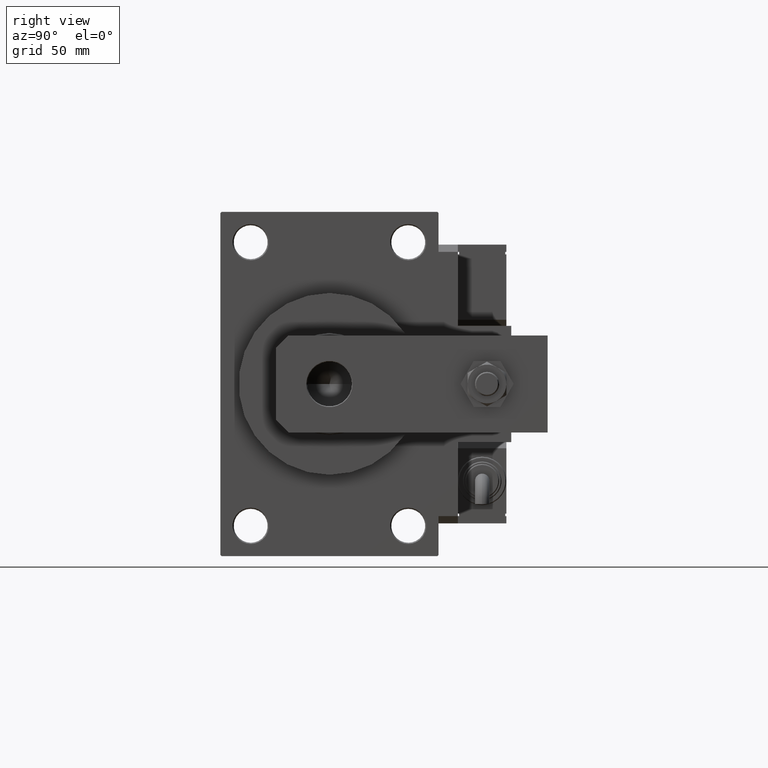
[diagram: clean part render]
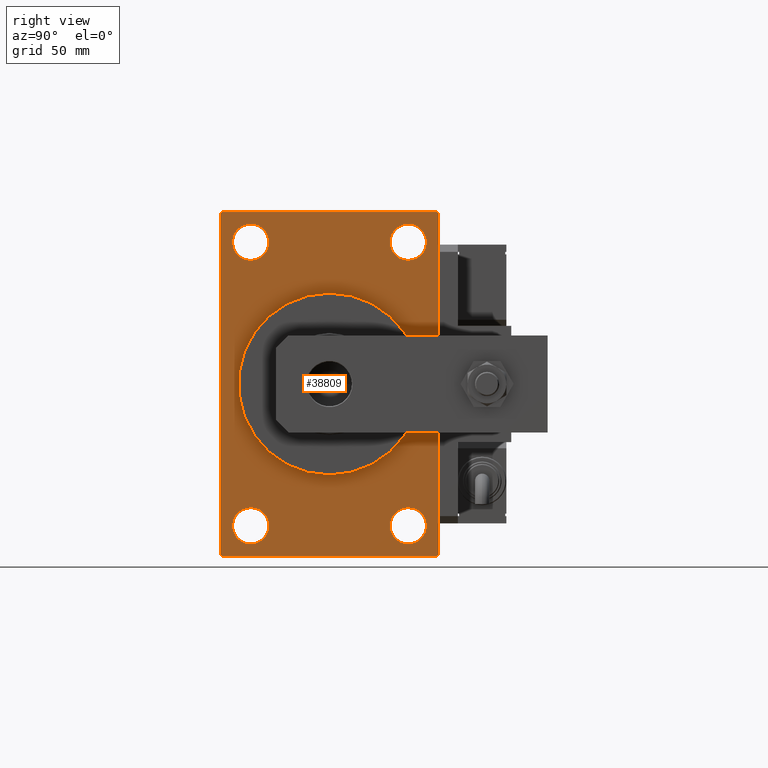
[diagram: same view with one face highlighted and labeled with its STEP entity id]
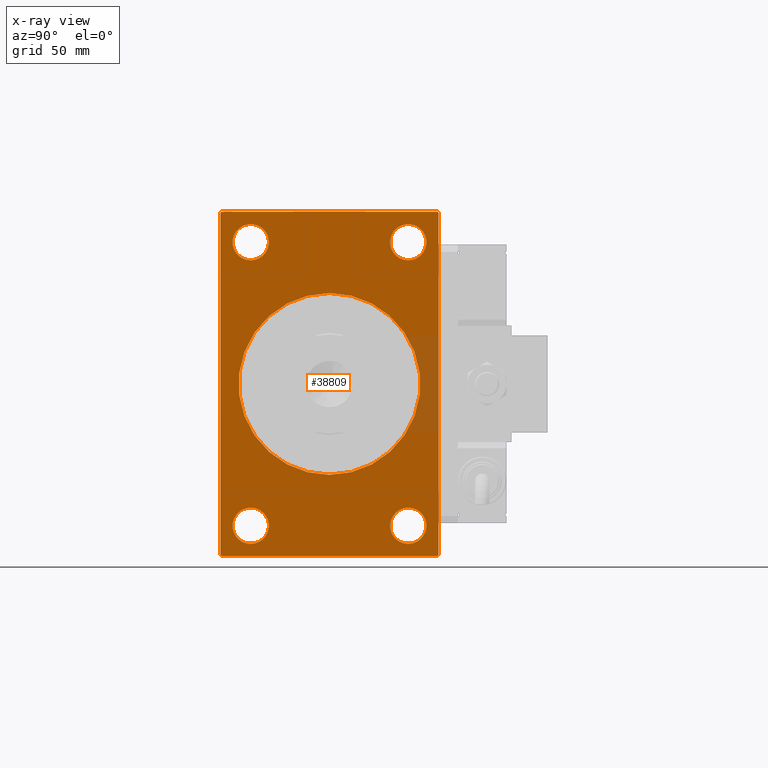
[diagram: x-ray of the same camera — body ghosted, the highlighted face saturated]
A machine part, right view. The second image highlights one B-rep face of the part: STEP entity #38809.
The next image is the same camera in x-ray: the body ghosted, the highlighted face saturated — about 5% of this face is hidden behind the body in this view.
In plain terms, the highlighted planar face has unit normal (-1, 0, 0).
Its self-contained STEP definition (entity closure, byte-faithful):
#549 = VERTEX_POINT ( 'NONE', #50748 ) ;
#657 = LINE ( 'NONE', #30128, #49444 ) ;
#1058 = VECTOR ( 'NONE', #35398, 1000.000000000000114 ) ;
#1947 = EDGE_CURVE ( 'NONE', #48466, #549, #41015, .T. ) ;
#2531 = EDGE_CURVE ( 'NONE', #53239, #50229, #44042, .T. ) ;
#3951 = DIRECTION ( 'NONE',  ( 0.000000000000000000, 0.000000000000000000, 1.000000000000000000 ) ) ;
#4068 = CIRCLE ( 'NONE', #7632, 37.50000000000000711 ) ;
#4560 = CARTESIAN_POINT ( 'NONE',  ( 140.0000000000000000, -32.50000000000001421, 58.50000000000001421 ) ) ;
#4664 = ORIENTED_EDGE ( 'NONE', *, *, #1947, .T. ) ;
#5159 = DIRECTION ( 'NONE',  ( 0.000000000000000000, 0.000000000000000000, -1.000000000000000000 ) ) ;
#5242 = CARTESIAN_POINT ( 'NONE',  ( 140.0000000000000000, 44.49999999999997158, -71.00000000000000000 ) ) ;
#5830 = PLANE ( 'NONE',  #46685 ) ;
#6240 = CARTESIAN_POINT ( 'NONE',  ( 140.0000000000000000, 32.49999999999998579, -66.00000000000000000 ) ) ;
#6892 = DIRECTION ( 'NONE',  ( 1.000000000000000000, 0.000000000000000000, 0.000000000000000000 ) ) ;
#7632 = AXIS2_PLACEMENT_3D ( 'NONE', #18107, #39804, #10599 ) ;
#7678 = EDGE_CURVE ( 'NONE', #35658, #16985, #22828, .T. ) ;
#7710 = CARTESIAN_POINT ( 'NONE',  ( 140.0000000000000000, -44.50000000000000000, -71.00000000000000000 ) ) ;
#8286 = DIRECTION ( 'NONE',  ( -1.000000000000000000, -0.000000000000000000, -0.000000000000000000 ) ) ;
#8716 = EDGE_LOOP ( 'NONE', ( #16716, #11887 ) ) ;
#8816 = CARTESIAN_POINT ( 'NONE',  ( 140.0000000000000000, -45.00000000000000000, 70.49999999999997158 ) ) ;
#8907 = ORIENTED_EDGE ( 'NONE', *, *, #54335, .T. ) ;
#8978 = VERTEX_POINT ( 'NONE', #13273 ) ;
#9212 = ORIENTED_EDGE ( 'NONE', *, *, #33801, .T. ) ;
#9885 = LINE ( 'NONE', #26834, #54566 ) ;
#10149 = ORIENTED_EDGE ( 'NONE', *, *, #24434, .T. ) ;
#10599 = DIRECTION ( 'NONE',  ( 0.000000000000000000, 0.000000000000000000, -1.000000000000000000 ) ) ;
#10976 = CARTESIAN_POINT ( 'NONE',  ( 140.0000000000000000, 45.00000000000000000, -70.49999999999997158 ) ) ;
#11370 = EDGE_CURVE ( 'NONE', #50229, #53554, #9885, .T. ) ;
#11471 = ORIENTED_EDGE ( 'NONE', *, *, #16325, .T. ) ;
#11723 = CARTESIAN_POINT ( 'NONE',  ( 140.0000000000000000, -32.50000000000001421, -58.49999999999998579 ) ) ;
#11887 = ORIENTED_EDGE ( 'NONE', *, *, #15626, .T. ) ;
#12120 = CIRCLE ( 'NONE', #15659, 7.500000000000034639 ) ;
#13273 = CARTESIAN_POINT ( 'NONE',  ( 140.0000000000000000, 32.49999999999998579, 66.00000000000002842 ) ) ;
#13892 = EDGE_CURVE ( 'NONE', #53943, #14305, #4068, .T. ) ;
#13893 = FACE_OUTER_BOUND ( 'NONE', #50429, .T. ) ;
#14305 = VERTEX_POINT ( 'NONE', #46757 ) ;
#14404 = CARTESIAN_POINT ( 'NONE',  ( 140.0000000000000000, -32.50000000000001421, -66.00000000000000000 ) ) ;
#14603 = ORIENTED_EDGE ( 'NONE', *, *, #2531, .T. ) ;
#14715 = ORIENTED_EDGE ( 'NONE', *, *, #22541, .T. ) ;
#15582 = EDGE_LOOP ( 'NONE', ( #8907, #16343 ) ) ;
#15626 = EDGE_CURVE ( 'NONE', #21656, #42736, #12120, .T. ) ;
#15659 = AXIS2_PLACEMENT_3D ( 'NONE', #42028, #16427, #21159 ) ;
#16116 = EDGE_CURVE ( 'NONE', #53239, #29919, #657, .T. ) ;
#16124 = FACE_BOUND ( 'NONE', #8716, .T. ) ;
#16325 = EDGE_CURVE ( 'NONE', #45458, #8978, #24614, .T. ) ;
#16343 = ORIENTED_EDGE ( 'NONE', *, *, #22750, .T. ) ;
#16427 = DIRECTION ( 'NONE',  ( -1.000000000000000000, -0.000000000000000000, -0.000000000000000000 ) ) ;
#16466 = CARTESIAN_POINT ( 'NONE',  ( 140.0000000000000000, -32.50000000000001421, 58.50000000000001421 ) ) ;
#16490 = CARTESIAN_POINT ( 'NONE',  ( 140.0000000000000000, 44.50000000000002842, 71.00000000000000000 ) ) ;
#16716 = ORIENTED_EDGE ( 'NONE', *, *, #17823, .T. ) ;
#16985 = VERTEX_POINT ( 'NONE', #7710 ) ;
#17823 = EDGE_CURVE ( 'NONE', #42736, #21656, #31763, .T. ) ;
#18107 = CARTESIAN_POINT ( 'NONE',  ( 140.0000000000000000, 0.000000000000000000, 0.000000000000000000 ) ) ;
#18241 = DIRECTION ( 'NONE',  ( -0.000000000000000000, -0.7071067811865474617, -0.7071067811865474617 ) ) ;
#18341 = FACE_BOUND ( 'NONE', #51227, .T. ) ;
#18498 = DIRECTION ( 'NONE',  ( 0.000000000000000000, -1.000000000000000000, 0.000000000000000000 ) ) ;
#19020 = VECTOR ( 'NONE', #40618, 1000.000000000000000 ) ;
#19350 = CARTESIAN_POINT ( 'NONE',  ( 140.0000000000000000, 45.00000000000000000, -70.49999999999997158 ) ) ;
#19533 = CARTESIAN_POINT ( 'NONE',  ( 140.0000000000000000, -32.50000000000001421, 66.00000000000004263 ) ) ;
#19785 = DIRECTION ( 'NONE',  ( -1.000000000000000000, -0.000000000000000000, -0.000000000000000000 ) ) ;
#20197 = AXIS2_PLACEMENT_3D ( 'NONE', #51494, #43149, #3951 ) ;
#20272 = DIRECTION ( 'NONE',  ( 0.000000000000000000, 0.7071067811865474617, -0.7071067811865474617 ) ) ;
#20311 = FACE_BOUND ( 'NONE', #53738, .T. ) ;
#20499 = CIRCLE ( 'NONE', #48044, 7.500000000000034639 ) ;
#21159 = DIRECTION ( 'NONE',  ( 0.000000000000000000, 0.000000000000000000, 1.000000000000000000 ) ) ;
#21337 = CARTESIAN_POINT ( 'NONE',  ( 140.0000000000000000, 32.49999999999998579, 58.50000000000000711 ) ) ;
#21411 = AXIS2_PLACEMENT_3D ( 'NONE', #21337, #8286, #46676 ) ;
#21656 = VERTEX_POINT ( 'NONE', #39624 ) ;
#21789 = DIRECTION ( 'NONE',  ( 0.000000000000000000, 0.000000000000000000, 1.000000000000000000 ) ) ;
#22309 = ORIENTED_EDGE ( 'NONE', *, *, #26399, .T. ) ;
#22541 = EDGE_CURVE ( 'NONE', #549, #48466, #38215, .T. ) ;
#22750 = EDGE_CURVE ( 'NONE', #25780, #36810, #20499, .T. ) ;
#22828 = LINE ( 'NONE', #23648, #19020 ) ;
#23390 = VECTOR ( 'NONE', #5159, 1000.000000000000000 ) ;
#23515 = CARTESIAN_POINT ( 'NONE',  ( 140.0000000000000000, -32.50000000000001421, -50.99999999999995026 ) ) ;
#23648 = CARTESIAN_POINT ( 'NONE',  ( 140.0000000000000000, 45.00000000000000000, -71.00000000000000000 ) ) ;
#24433 = AXIS2_PLACEMENT_3D ( 'NONE', #26418, #42366, #47855 ) ;
#24434 = EDGE_CURVE ( 'NONE', #35658, #29919, #49392, .T. ) ;
#24614 = CIRCLE ( 'NONE', #46834, 7.500000000000020428 ) ;
#24769 = ORIENTED_EDGE ( 'NONE', *, *, #13892, .F. ) ;
#25414 = DIRECTION ( 'NONE',  ( 0.000000000000000000, 0.000000000000000000, -1.000000000000000000 ) ) ;
#25780 = VERTEX_POINT ( 'NONE', #23515 ) ;
#25791 = AXIS2_PLACEMENT_3D ( 'NONE', #4560, #29867, #21789 ) ;
#26176 = VECTOR ( 'NONE', #18241, 1000.000000000000114 ) ;
#26399 = EDGE_CURVE ( 'NONE', #8978, #45458, #54299, .T. ) ;
#26406 = DIRECTION ( 'NONE',  ( -0.000000000000000000, 0.000000000000000000, 1.000000000000000000 ) ) ;
#26418 = CARTESIAN_POINT ( 'NONE',  ( 140.0000000000000000, -32.50000000000001421, -58.49999999999998579 ) ) ;
#26834 = CARTESIAN_POINT ( 'NONE',  ( 140.0000000000000000, 45.00000000000000000, 71.00000000000000000 ) ) ;
#27858 = CARTESIAN_POINT ( 'NONE',  ( 140.0000000000000000, 32.49999999999998579, 58.50000000000000711 ) ) ;
#28213 = ORIENTED_EDGE ( 'NONE', *, *, #36913, .F. ) ;
#28414 = VERTEX_POINT ( 'NONE', #42209 ) ;
#28977 = DIRECTION ( 'NONE',  ( 0.000000000000000000, 0.000000000000000000, 1.000000000000000000 ) ) ;
#28995 = ORIENTED_EDGE ( 'NONE', *, *, #29466, .T. ) ;
#29382 = EDGE_LOOP ( 'NONE', ( #11471, #22309 ) ) ;
#29466 = EDGE_CURVE ( 'NONE', #28414, #16985, #41421, .T. ) ;
#29867 = DIRECTION ( 'NONE',  ( -1.000000000000000000, -0.000000000000000000, -0.000000000000000000 ) ) ;
#29919 = VERTEX_POINT ( 'NONE', #10976 ) ;
#30128 = CARTESIAN_POINT ( 'NONE',  ( 140.0000000000000000, 45.00000000000000000, 71.00000000000000000 ) ) ;
#30212 = LINE ( 'NONE', #8816, #26176 ) ;
#30973 = CARTESIAN_POINT ( 'NONE',  ( 140.0000000000000000, 44.50000000000002842, 71.00000000000000000 ) ) ;
#31076 = CARTESIAN_POINT ( 'NONE',  ( 140.0000000000000000, -45.00000000000000000, 70.49999999999997158 ) ) ;
#31537 = EDGE_CURVE ( 'NONE', #49675, #28414, #39344, .T. ) ;
#31763 = CIRCLE ( 'NONE', #20197, 7.500000000000034639 ) ;
#31940 = VECTOR ( 'NONE', #53293, 1000.000000000000114 ) ;
#32592 = DIRECTION ( 'NONE',  ( -1.000000000000000000, -0.000000000000000000, -0.000000000000000000 ) ) ;
#33061 = CARTESIAN_POINT ( 'NONE',  ( 140.0000000000000000, -44.50000000000002842, -71.00000000000000000 ) ) ;
#33103 = FACE_BOUND ( 'NONE', #29382, .T. ) ;
#33292 = CARTESIAN_POINT ( 'NONE',  ( 140.0000000000000000, 0.000000000000000000, 0.000000000000000000 ) ) ;
#33801 = EDGE_CURVE ( 'NONE', #53554, #49675, #30212, .T. ) ;
#35024 = AXIS2_PLACEMENT_3D ( 'NONE', #33292, #6892, #41910 ) ;
#35398 = DIRECTION ( 'NONE',  ( 0.000000000000000000, -0.7071067811865474617, 0.7071067811865474617 ) ) ;
#35658 = VERTEX_POINT ( 'NONE', #5242 ) ;
#35938 = CIRCLE ( 'NONE', #35024, 37.50000000000000711 ) ;
#36810 = VERTEX_POINT ( 'NONE', #14404 ) ;
#36913 = EDGE_CURVE ( 'NONE', #14305, #53943, #35938, .T. ) ;
#36928 = CARTESIAN_POINT ( 'NONE',  ( 140.0000000000000000, -44.49999999999994316, 71.00000000000000000 ) ) ;
#38215 = CIRCLE ( 'NONE', #25791, 7.500000000000027534 ) ;
#38809 = ADVANCED_FACE ( 'NONE', ( #20311, #54252, #16124, #33103, #18341, #13893 ), #5830, .F. ) ;
#39344 = LINE ( 'NONE', #39898, #23390 ) ;
#39525 = CIRCLE ( 'NONE', #24433, 7.500000000000034639 ) ;
#39624 = CARTESIAN_POINT ( 'NONE',  ( 140.0000000000000000, 32.49999999999998579, -50.99999999999995026 ) ) ;
#39804 = DIRECTION ( 'NONE',  ( 1.000000000000000000, 0.000000000000000000, 0.000000000000000000 ) ) ;
#39898 = CARTESIAN_POINT ( 'NONE',  ( 140.0000000000000000, -45.00000000000000000, 71.00000000000000000 ) ) ;
#40618 = DIRECTION ( 'NONE',  ( 0.000000000000000000, -1.000000000000000000, 0.000000000000000000 ) ) ;
#41015 = CIRCLE ( 'NONE', #48150, 7.500000000000027534 ) ;
#41421 = LINE ( 'NONE', #33061, #41988 ) ;
#41910 = DIRECTION ( 'NONE',  ( 0.000000000000000000, 0.000000000000000000, -1.000000000000000000 ) ) ;
#41988 = VECTOR ( 'NONE', #20272, 1000.000000000000114 ) ;
#42028 = CARTESIAN_POINT ( 'NONE',  ( 140.0000000000000000, 32.49999999999998579, -58.49999999999998579 ) ) ;
#42209 = CARTESIAN_POINT ( 'NONE',  ( 140.0000000000000000, -45.00000000000000000, -70.50000000000001421 ) ) ;
#42366 = DIRECTION ( 'NONE',  ( -1.000000000000000000, -0.000000000000000000, -0.000000000000000000 ) ) ;
#42408 = CARTESIAN_POINT ( 'NONE',  ( 140.0000000000000000, 32.49999999999998579, 50.99999999999999289 ) ) ;
#42736 = VERTEX_POINT ( 'NONE', #6240 ) ;
#43149 = DIRECTION ( 'NONE',  ( -1.000000000000000000, -0.000000000000000000, -0.000000000000000000 ) ) ;
#44042 = LINE ( 'NONE', #30973, #1058 ) ;
#45458 = VERTEX_POINT ( 'NONE', #42408 ) ;
#46635 = ORIENTED_EDGE ( 'NONE', *, *, #31537, .T. ) ;
#46676 = DIRECTION ( 'NONE',  ( 0.000000000000000000, 0.000000000000000000, 1.000000000000000000 ) ) ;
#46685 = AXIS2_PLACEMENT_3D ( 'NONE', #47017, #47285, #26406 ) ;
#46757 = CARTESIAN_POINT ( 'NONE',  ( 140.0000000000000000, 4.592425496802575156E-15, -37.50000000000000711 ) ) ;
#46834 = AXIS2_PLACEMENT_3D ( 'NONE', #27858, #32592, #53741 ) ;
#47017 = CARTESIAN_POINT ( 'NONE',  ( 140.0000000000000000, 0.000000000000000000, 0.000000000000000000 ) ) ;
#47285 = DIRECTION ( 'NONE',  ( -1.000000000000000000, 0.000000000000000000, -0.000000000000000000 ) ) ;
#47571 = CARTESIAN_POINT ( 'NONE',  ( 140.0000000000000000, 45.00000000000000000, 70.50000000000001421 ) ) ;
#47855 = DIRECTION ( 'NONE',  ( 0.000000000000000000, 0.000000000000000000, 1.000000000000000000 ) ) ;
#48044 = AXIS2_PLACEMENT_3D ( 'NONE', #11723, #19785, #28977 ) ;
#48147 = ORIENTED_EDGE ( 'NONE', *, *, #11370, .T. ) ;
#48150 = AXIS2_PLACEMENT_3D ( 'NONE', #16466, #50430, #49597 ) ;
#48466 = VERTEX_POINT ( 'NONE', #19533 ) ;
#49392 = LINE ( 'NONE', #19350, #31940 ) ;
#49444 = VECTOR ( 'NONE', #25414, 1000.000000000000000 ) ;
#49597 = DIRECTION ( 'NONE',  ( 0.000000000000000000, 0.000000000000000000, 1.000000000000000000 ) ) ;
#49675 = VERTEX_POINT ( 'NONE', #31076 ) ;
#50194 = ORIENTED_EDGE ( 'NONE', *, *, #7678, .F. ) ;
#50229 = VERTEX_POINT ( 'NONE', #16490 ) ;
#50429 = EDGE_LOOP ( 'NONE', ( #46635, #28995, #50194, #10149, #53148, #14603, #48147, #9212 ) ) ;
#50430 = DIRECTION ( 'NONE',  ( -1.000000000000000000, -0.000000000000000000, -0.000000000000000000 ) ) ;
#50513 = CARTESIAN_POINT ( 'NONE',  ( 140.0000000000000000, 0.000000000000000000, 37.50000000000000711 ) ) ;
#50748 = CARTESIAN_POINT ( 'NONE',  ( 140.0000000000000000, -32.50000000000001421, 50.99999999999999289 ) ) ;
#51227 = EDGE_LOOP ( 'NONE', ( #24769, #28213 ) ) ;
#51494 = CARTESIAN_POINT ( 'NONE',  ( 140.0000000000000000, 32.49999999999998579, -58.49999999999998579 ) ) ;
#53148 = ORIENTED_EDGE ( 'NONE', *, *, #16116, .F. ) ;
#53239 = VERTEX_POINT ( 'NONE', #47571 ) ;
#53293 = DIRECTION ( 'NONE',  ( -0.000000000000000000, 0.7071067811865474617, 0.7071067811865474617 ) ) ;
#53554 = VERTEX_POINT ( 'NONE', #36928 ) ;
#53738 = EDGE_LOOP ( 'NONE', ( #14715, #4664 ) ) ;
#53741 = DIRECTION ( 'NONE',  ( 0.000000000000000000, 0.000000000000000000, 1.000000000000000000 ) ) ;
#53943 = VERTEX_POINT ( 'NONE', #50513 ) ;
#54252 = FACE_BOUND ( 'NONE', #15582, .T. ) ;
#54299 = CIRCLE ( 'NONE', #21411, 7.500000000000020428 ) ;
#54335 = EDGE_CURVE ( 'NONE', #36810, #25780, #39525, .T. ) ;
#54566 = VECTOR ( 'NONE', #18498, 1000.000000000000000 ) ;